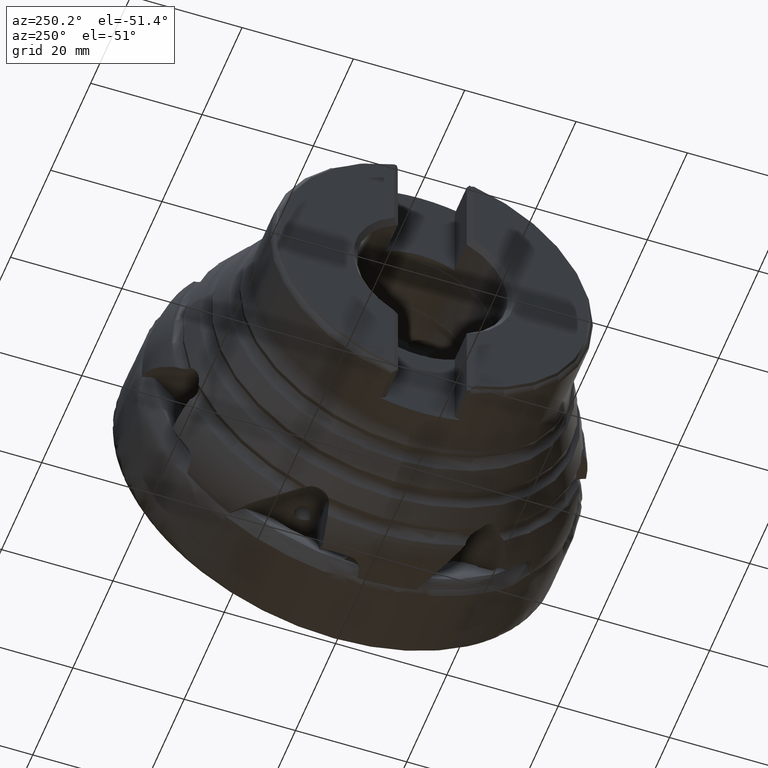
[diagram: clean part render]
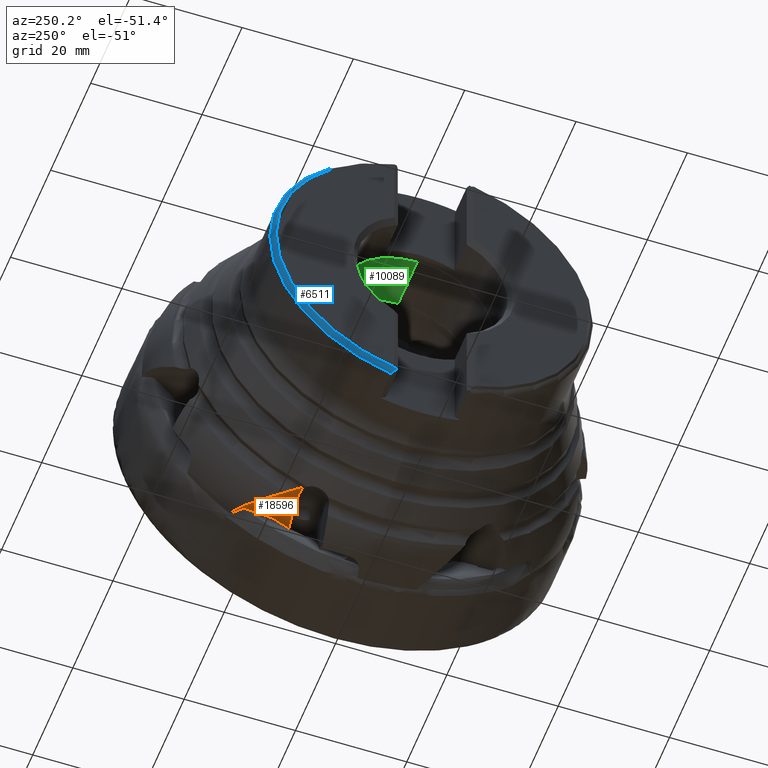
[diagram: same view with three faces highlighted in distinct colors, each labeled with its STEP entity id]
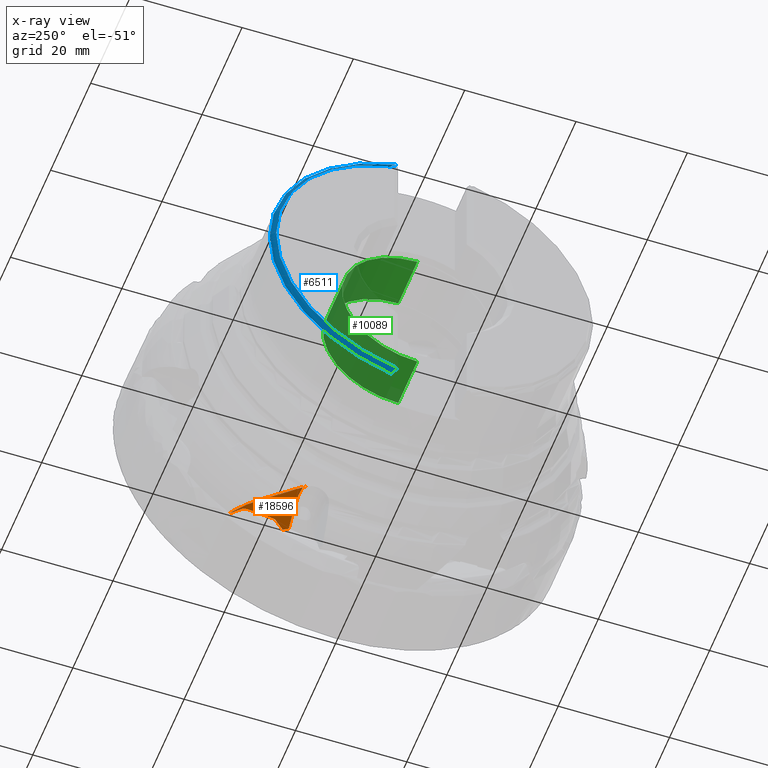
[diagram: x-ray of the same camera — body ghosted, the three highlighted faces saturated]
A machine part, auxiliary view with three faces highlighted in distinct colors.
The next image is the same camera in x-ray (body ghosted, the three faces saturated) — at least one of them is partly hidden behind the body in this view.
Their STEP definitions:

[orange] entity #18596 — the highlighted conical surface has half-angle 25 deg.
#254 = CARTESIAN_POINT ( 'NONE',  ( -23.75697706791013500, 13.81798672375631800, -33.20236709120594300 ) ) ;
#603 = FACE_OUTER_BOUND ( 'NONE', #16149, .T. ) ;
#658 = CARTESIAN_POINT ( 'NONE',  ( -13.50730426062360000, 22.55529430926892300, -31.29764104025030500 ) ) ;
#919 = CARTESIAN_POINT ( 'NONE',  ( -9.463252224743810000, 14.11254857389238300, -25.67094245073273100 ) ) ;
#954 = CARTESIAN_POINT ( 'NONE',  ( -14.00804329131293900, 21.53660307685288400, -30.90397856189066100 ) ) ;
#1488 = CARTESIAN_POINT ( 'NONE',  ( -7.480037492554150600, 11.11459993151474500, -44.00000000000001400 ) ) ;
#1576 = VERTEX_POINT ( 'NONE', #17260 ) ;
#1640 = ORIENTED_EDGE ( 'NONE', *, *, #13310, .T. ) ;
#1704 = DIRECTION ( 'NONE',  ( 0.1484917406717438900, 0.8940604050037934700, -0.4226182617406972200 ) ) ;
#1751 = EDGE_CURVE ( 'NONE', #17425, #1576, #14639, .T. ) ;
#1769 = CARTESIAN_POINT ( 'NONE',  ( -23.72702917279419000, 13.84209461246224400, -33.18768880355523300 ) ) ;
#1841 = CARTESIAN_POINT ( 'NONE',  ( -23.66625336517646600, 13.87977953988623100, -33.14602596675197800 ) ) ;
#2010 = CARTESIAN_POINT ( 'NONE',  ( -21.48514638599130700, 16.65825859365775200, -33.23645156381313400 ) ) ;
#2079 = CARTESIAN_POINT ( 'NONE',  ( -22.19630278449307400, 15.19479962667811500, -32.63726156888986200 ) ) ;
#2152 = AXIS2_PLACEMENT_3D ( 'NONE', #1488, #22580, #7552 ) ;
#2174 = CARTESIAN_POINT ( 'NONE',  ( -22.99999999999995000, 14.35228710107264800, -32.77385773540241600 ) ) ;
#2248 = EDGE_CURVE ( 'NONE', #23207, #10510, #21677, .T. ) ;
#2317 = CARTESIAN_POINT ( 'NONE',  ( -20.71060675804170300, 17.62245996552912400, -33.26454498159726800 ) ) ;
#2486 = ORIENTED_EDGE ( 'NONE', *, *, #1751, .T. ) ;
#2651 = CARTESIAN_POINT ( 'NONE',  ( -12.81791756462504800, 23.41690265047119700, -31.49827761620018100 ) ) ;
#2654 = EDGE_CURVE ( 'NONE', #10510, #7423, #17234, .T. ) ;
#2717 = CARTESIAN_POINT ( 'NONE',  ( -14.00512252077036200, 21.65447841395128100, -30.97848500538010100 ) ) ;
#2989 = CARTESIAN_POINT ( 'NONE',  ( -9.153389588249572400, 13.86064696126040000, -25.53516847632647900 ) ) ;
#3030 = ORIENTED_EDGE ( 'NONE', *, *, #6808, .T. ) ;
#3078 = CARTESIAN_POINT ( 'NONE',  ( -10.22009400952298300, 15.11965316675767400, -26.22788067111993400 ) ) ;
#3471 = CARTESIAN_POINT ( 'NONE',  ( -20.71060675804170300, 17.62245996552912400, -33.26454498159726800 ) ) ;
#3522 = EDGE_CURVE ( 'NONE', #21801, #10143, #8398, .T. ) ;
#3587 = B_SPLINE_CURVE_WITH_KNOTS ( 'NONE', 3,
 ( #6403, #17691, #6307, #2651, #23438, #4558, #11845, #8128, #8280, #17841, #19528, #12026, #17936, #658, #15831, #12175, #21433, #19687, #6480, #19785 ),
 .UNSPECIFIED., .F., .F.,
 ( 4, 2, 2, 2, 2, 2, 2, 2, 2, 4 ),
 ( 0.004865559379412774000, 0.005014309760329991500, 0.005088684950788599300, 0.005163060141247208100, 0.005311810522164429900, 0.005460560903081651700, 0.006055562426750529500, 0.006353063188584968800, 0.006650563950419408100, 0.007245565474088289300 ),
 .UNSPECIFIED. ) ;
#3688 = ORIENTED_EDGE ( 'NONE', *, *, #2248, .T. ) ;
#3776 = CARTESIAN_POINT ( 'NONE',  ( -13.63365845646050000, 20.87241299469826900, -30.29833066339357100 ) ) ;
#3837 = CARTESIAN_POINT ( 'NONE',  ( -20.71060675804170300, 17.62245996552912400, -33.26454498159726800 ) ) ;
#3841 = VERTEX_POINT ( 'NONE', #15166 ) ;
#3897 = CARTESIAN_POINT ( 'NONE',  ( -22.34590130815565700, 15.00948006903706400, -32.63244003423648800 ) ) ;
#4423 = CARTESIAN_POINT ( 'NONE',  ( -13.99014396501193000, 21.42387369316637800, -30.82224872985901200 ) ) ;
#4558 = CARTESIAN_POINT ( 'NONE',  ( -12.84965524976151800, 23.35247538411781000, -31.47326217521158400 ) ) ;
#4587 = ORIENTED_EDGE ( 'NONE', *, *, #13784, .T. ) ;
#4861 = LINE ( 'NONE', #7594, #19444 ) ;
#4970 = CARTESIAN_POINT ( 'NONE',  ( -9.562961771919205500, 14.19819724099245300, -25.71846593551739700 ) ) ;
#5366 = CARTESIAN_POINT ( 'NONE',  ( -12.86780408106254100, 19.74908770233404800, -29.30373327156101100 ) ) ;
#5570 = CARTESIAN_POINT ( 'NONE',  ( -21.39547274631672000, 16.80774089919278300, -33.27705584709097800 ) ) ;
#5738 = CARTESIAN_POINT ( 'NONE',  ( -21.43003627033320400, 16.75826411311260200, -33.26958377227654000 ) ) ;
#5825 = CARTESIAN_POINT ( 'NONE',  ( -13.42999999998231800, 23.31658262420255700, -31.74882447790329500 ) ) ;
#6145 = EDGE_CURVE ( 'NONE', #20119, #24496, #13102, .T. ) ;
#6186 = CARTESIAN_POINT ( 'NONE',  ( -22.99999999999995000, 14.35228710107264800, -32.77385773540241600 ) ) ;
#6280 = CARTESIAN_POINT ( 'NONE',  ( -14.15014878084371300, 23.04542300799588300, -31.96294139637396400 ) ) ;
#6307 = CARTESIAN_POINT ( 'NONE',  ( -12.78874999228169600, 23.48259632960186500, -31.52533848199048800 ) ) ;
#6403 = CARTESIAN_POINT ( 'NONE',  ( -12.73703642166904400, 23.56386365981365900, -31.55123374957431900 ) ) ;
#6480 = CARTESIAN_POINT ( 'NONE',  ( -13.99169692692829200, 21.82712847984057800, -31.08286494078072000 ) ) ;
#6762 = CARTESIAN_POINT ( 'NONE',  ( -7.311189934746824500, 12.13122156470598200, -24.76162903228838300 ) ) ;
#6808 = EDGE_CURVE ( 'NONE', #7423, #17425, #18544, .T. ) ;
#6894 = CARTESIAN_POINT ( 'NONE',  ( -11.62739094339453900, 17.73347545487341000, -27.81185873240652000 ) ) ;
#7175 = CARTESIAN_POINT ( 'NONE',  ( -23.44446523429969500, 14.01082533494576100, -32.98969059895133400 ) ) ;
#7213 = CARTESIAN_POINT ( 'NONE',  ( -21.35698739462250000, 16.85396131560803600, -33.27653043660755100 ) ) ;
#7265 = CARTESIAN_POINT ( 'NONE',  ( -22.99999999999995000, 14.35228710107264800, -32.77385773540241600 ) ) ;
#7423 = VERTEX_POINT ( 'NONE', #18395 ) ;
#7552 = DIRECTION ( 'NONE',  ( 0.9864865090998470300, -0.1638425078055066600, 0.0000000000000000000 ) ) ;
#7587 = CARTESIAN_POINT ( 'NONE',  ( -13.92594489814875800, 21.27140789582722400, -30.69202977994917700 ) ) ;
#7594 = CARTESIAN_POINT ( 'NONE',  ( -7.480037492554148800, 11.11459993151474500, -24.28107663889003800 ) ) ;
#7850 = CARTESIAN_POINT ( 'NONE',  ( -13.50504463302497400, 20.69022823963306100, -30.12769295613228600 ) ) ;
#8004 = EDGE_CURVE ( 'NONE', #1576, #3841, #16848, .T. ) ;
#8019 = CARTESIAN_POINT ( 'NONE',  ( -15.82319226672821900, 22.09316911394340700, -32.43395772877481400 ) ) ;
#8099 = CARTESIAN_POINT ( 'NONE',  ( -13.42999999998231800, 23.31658262420255700, -31.74882447790329500 ) ) ;
#8128 = CARTESIAN_POINT ( 'NONE',  ( -12.90551654417424000, 23.27324088766796400, -31.45070682981129200 ) ) ;
#8242 = EDGE_CURVE ( 'NONE', #3841, #21801, #3587, .T. ) ;
#8280 = CARTESIAN_POINT ( 'NONE',  ( -12.93795454822777700, 23.23583561384899800, -31.44304841093940100 ) ) ;
#8340 = CARTESIAN_POINT ( 'NONE',  ( -18.56034374061523800, 19.91925128102030800, -33.05546755208125400 ) ) ;
#8398 = B_SPLINE_CURVE_WITH_KNOTS ( 'NONE', 3,
 ( #19896, #15786, #954, #4423, #17738, #7587, #10180, #20012, #10926, #3776, #7850, #21326, #5366, #11104, #23699, #12280, #18034, #6894, #8719, #19869, #16196, #12612, #20203, #14516, #3078, #20037, #10357, #4970, #919, #18101, #2989, #8479, #23867, #8806, #12436, #12369 ),
 .UNSPECIFIED., .F., .F.,
 ( 4, 2, 2, 2, 2, 2, 2, 2, 2, 2, 2, 2, 2, 2, 2, 2, 2, 4 ),
 ( 0.007245565474088289300, 0.007451459210061797500, 0.007657352946035304900, 0.007863246682008813100, 0.008069140417982321300, 0.008892715361876380200, 0.01053986524966450700, 0.01136344019355856400, 0.01218701513745262500, 0.01383416502524073900, 0.01465773996913478600, 0.01548131491302883600, 0.01630488985692288600, 0.01712846480081693300, 0.01754025227276396000, 0.01795203974471098300, 0.01877561468860503700, 0.02042276457639314500 ),
 .UNSPECIFIED. ) ;
#8479 = CARTESIAN_POINT ( 'NONE',  ( -8.853618114259475600, 13.59966382052404800, -25.40110764205016400 ) ) ;
#8719 = CARTESIAN_POINT ( 'NONE',  ( -11.38656958417703000, 17.31135614432819400, -27.53409060023130900 ) ) ;
#8806 = CARTESIAN_POINT ( 'NONE',  ( -8.093405834079531400, 12.86566565953202500, -25.05546297559491000 ) ) ;
#9344 = B_SPLINE_CURVE_WITH_KNOTS ( 'NONE', 3,
 ( #254, #1769, #24624, #1841 ),
 .UNSPECIFIED., .F., .F.,
 ( 4, 4 ),
 ( 0.0002686572530961564500, 0.0003919703822120637100 ),
 .UNSPECIFIED. ) ;
#10075 = CARTESIAN_POINT ( 'NONE',  ( -16.77943254111280100, 21.42199845879512000, -32.67824429210219300 ) ) ;
#10143 = VERTEX_POINT ( 'NONE', #6762 ) ;
#10180 = CARTESIAN_POINT ( 'NONE',  ( -13.89200577679785700, 21.22847428899100900, -30.64766971461086700 ) ) ;
#10275 = CARTESIAN_POINT ( 'NONE',  ( -7.480037492554148800, 11.11459993151474500, -24.28107663889003800 ) ) ;
#10357 = CARTESIAN_POINT ( 'NONE',  ( -9.826781441315715100, 14.47750264176209500, -25.87262609347809000 ) ) ;
#10510 = VERTEX_POINT ( 'NONE', #21302 ) ;
#10926 = CARTESIAN_POINT ( 'NONE',  ( -13.79487997543589000, 21.09576861461963300, -30.51597646425511100 ) ) ;
#10937 = CARTESIAN_POINT ( 'NONE',  ( -20.92734534271972500, 17.36739249063721100, -33.26956135351792200 ) ) ;
#11104 = CARTESIAN_POINT ( 'NONE',  ( -12.49127438886327500, 19.15887863563897000, -28.83952151872462400 ) ) ;
#11277 = CARTESIAN_POINT ( 'NONE',  ( -21.92914542179784800, 15.57499821599935400, -32.69453708625153600 ) ) ;
#11457 = CARTESIAN_POINT ( 'NONE',  ( -21.61575830274005800, 16.17384164418339400, -32.91208110503954000 ) ) ;
#11600 = ORIENTED_EDGE ( 'NONE', *, *, #6145, .T. ) ;
#11845 = CARTESIAN_POINT ( 'NONE',  ( -12.86274711282909400, 23.33223759459597300, -31.46692381990481700 ) ) ;
#12026 = CARTESIAN_POINT ( 'NONE',  ( -13.18907578679612800, 22.93235326347960900, -31.37570777810733700 ) ) ;
#12081 = CARTESIAN_POINT ( 'NONE',  ( -14.83406174202813700, 22.69842198419853600, -32.16295218454241200 ) ) ;
#12175 = CARTESIAN_POINT ( 'NONE',  ( -13.69850476067092900, 22.32890618577879500, -31.25191003192229300 ) ) ;
#12280 = CARTESIAN_POINT ( 'NONE',  ( -12.11512071830872600, 18.55817865796093400, -28.38974703018390500 ) ) ;
#12369 = CARTESIAN_POINT ( 'NONE',  ( -7.311189934746824500, 12.13122156470598200, -24.76162903228838300 ) ) ;
#12436 = CARTESIAN_POINT ( 'NONE',  ( -7.720673714818695500, 12.48494583876874500, -24.89305941946776800 ) ) ;
#12585 = DIRECTION ( 'NONE',  ( -0.1638425078055066900, -0.9864865090998471400, 0.0000000000000000000 ) ) ;
#12612 = CARTESIAN_POINT ( 'NONE',  ( -10.67591777370161000, 16.01259999384866400, -26.73641083606824200 ) ) ;
#13102 = CIRCLE ( 'NONE', #2152, 19.71892336110997900 ) ;
#13108 = CARTESIAN_POINT ( 'NONE',  ( -21.51366886119535900, 16.56013891611834100, -33.17286633270701700 ) ) ;
#13310 = EDGE_CURVE ( 'NONE', #17547, #23207, #16368, .T. ) ;
#13429 = ORIENTED_EDGE ( 'NONE', *, *, #8242, .T. ) ;
#13433 = CARTESIAN_POINT ( 'NONE',  ( -22.82786545454568400, 14.50034988199571700, -32.70901826615394700 ) ) ;
#13659 = CONICAL_SURFACE ( 'NONE', #23140, 19.71892336110997600, 0.4363323129985797700 ) ;
#13784 = EDGE_CURVE ( 'NONE', #24496, #17547, #9344, .T. ) ;
#14326 = CARTESIAN_POINT ( 'NONE',  ( -7.480037492554150600, 11.11459993151474500, -44.00000000000001400 ) ) ;
#14516 = CARTESIAN_POINT ( 'NONE',  ( -10.33564150824729600, 15.34283961137950500, -26.35274025468865500 ) ) ;
#14631 = CARTESIAN_POINT ( 'NONE',  ( -23.10960430794019900, 14.25801015862669800, -32.81514337702331800 ) ) ;
#14639 = B_SPLINE_CURVE_WITH_KNOTS ( 'NONE', 3,
 ( #2317, #19081, #17668, #8340, #19662, #17820, #10075, #23486, #8019, #12081, #6280, #8099 ),
 .UNSPECIFIED., .F., .F.,
 ( 4, 2, 2, 2, 2, 4 ),
 ( 3.050990413501854000E-007, 0.002356208442573173200, 0.004712111786104996800, 0.005890063457870908800, 0.007068015129636819900, 0.009423918473168643000 ),
 .UNSPECIFIED. ) ;
#14792 = CARTESIAN_POINT ( 'NONE',  ( -23.55555720309497400, 13.93999408521121100, -33.06131590639105200 ) ) ;
#15012 = CARTESIAN_POINT ( 'NONE',  ( -23.75697706791013500, 13.81798672375631800, -33.20236709120594300 ) ) ;
#15166 = CARTESIAN_POINT ( 'NONE',  ( -12.73703642166904400, 23.56386365981365900, -31.55123374957431900 ) ) ;
#15173 = EDGE_CURVE ( 'NONE', #20119, #10143, #4861, .T. ) ;
#15786 = CARTESIAN_POINT ( 'NONE',  ( -14.00976829992193400, 21.59473475672027800, -30.94236547626056600 ) ) ;
#15831 = CARTESIAN_POINT ( 'NONE',  ( -13.56996926632802000, 22.47926649031521500, -31.28138155075834700 ) ) ;
#16149 = EDGE_LOOP ( 'NONE', ( #22471, #13429, #17401, #23240, #11600, #4587, #1640, #3688, #20415, #3030, #2486 ) ) ;
#16196 = CARTESIAN_POINT ( 'NONE',  ( -10.91051382867966300, 16.45020343139524900, -26.99764066906040900 ) ) ;
#16368 = B_SPLINE_CURVE_WITH_KNOTS ( 'NONE', 3,
 ( #21914, #14792, #7175, #24236, #14631, #7265 ),
 .UNSPECIFIED., .F., .F.,
 ( 4, 2, 4 ),
 ( 2.705208949868603300E-007, 0.0004494539080006473200, 0.0008986372951063078600 ),
 .UNSPECIFIED. ) ;
#16848 = B_SPLINE_CURVE_WITH_KNOTS ( 'NONE', 3,
 ( #5825, #24542, #23041, #17285 ),
 .UNSPECIFIED., .F., .F.,
 ( 4, 4 ),
 ( 2.195725631262309700E-007, 0.0007562303834991008400 ),
 .UNSPECIFIED. ) ;
#17125 = CARTESIAN_POINT ( 'NONE',  ( -21.50625073686516600, 16.60683137848201000, -33.21055178569089600 ) ) ;
#17195 = CARTESIAN_POINT ( 'NONE',  ( -21.51366886119535900, 16.56013891611834100, -33.17286633270701700 ) ) ;
#17234 = B_SPLINE_CURVE_WITH_KNOTS ( 'NONE', 3,
 ( #13108, #17125, #2010, #5738, #5570, #19032 ),
 .UNSPECIFIED., .F., .F.,
 ( 4, 2, 4 ),
 ( 1.631719470035941600E-006, 0.0001800647426003101200, 0.0003584977657305842900 ),
 .UNSPECIFIED. ) ;
#17260 = CARTESIAN_POINT ( 'NONE',  ( -13.42999999998231800, 23.31658262420255700, -31.74882447790329500 ) ) ;
#17281 = CARTESIAN_POINT ( 'NONE',  ( -21.80783727372234500, 15.77536507895485200, -32.74789027672952100 ) ) ;
#17285 = CARTESIAN_POINT ( 'NONE',  ( -12.73703642166904400, 23.56386365981365900, -31.55123374957431900 ) ) ;
#17401 = ORIENTED_EDGE ( 'NONE', *, *, #3522, .T. ) ;
#17425 = VERTEX_POINT ( 'NONE', #3837 ) ;
#17547 = VERTEX_POINT ( 'NONE', #21468 ) ;
#17668 = CARTESIAN_POINT ( 'NONE',  ( -19.66445720211093800, 18.81030527228495700, -33.20688756157030500 ) ) ;
#17691 = CARTESIAN_POINT ( 'NONE',  ( -12.76423996532161300, 23.52389628917860500, -31.53934837445051500 ) ) ;
#17738 = CARTESIAN_POINT ( 'NONE',  ( -13.97395835576842100, 21.36929944741149300, -30.77892128060050700 ) ) ;
#17820 = CARTESIAN_POINT ( 'NONE',  ( -17.08678582245597300, 21.18464402550529600, -32.75115169628701000 ) ) ;
#17841 = CARTESIAN_POINT ( 'NONE',  ( -13.00056520085257200, 23.15989194303470100, -31.42598878737267800 ) ) ;
#17936 = CARTESIAN_POINT ( 'NONE',  ( -13.31592180840180500, 22.78130886678145100, -31.34375925885980200 ) ) ;
#18034 = CARTESIAN_POINT ( 'NONE',  ( -11.99283738022143300, 18.35353563653906100, -28.24341458207302900 ) ) ;
#18101 = CARTESIAN_POINT ( 'NONE',  ( -9.257369435123157700, 13.94449714625550900, -25.57959911956777400 ) ) ;
#18395 = CARTESIAN_POINT ( 'NONE',  ( -21.35698739462250000, 16.85396131560803600, -33.27653043660755100 ) ) ;
#18544 = B_SPLINE_CURVE_WITH_KNOTS ( 'NONE', 3,
 ( #7213, #20452, #10937, #3471 ),
 .UNSPECIFIED., .F., .F.,
 ( 4, 4 ),
 ( 3.125687328263996500E-007, 0.001004574363987892200 ),
 .UNSPECIFIED. ) ;
#18596 = ADVANCED_FACE ( 'NONE', ( #603 ), #13659, .F. ) ;
#19032 = CARTESIAN_POINT ( 'NONE',  ( -21.35698739462250000, 16.85396131560803600, -33.27653043660755100 ) ) ;
#19081 = CARTESIAN_POINT ( 'NONE',  ( -20.19582019766368900, 18.22828337375594600, -33.25263034789032400 ) ) ;
#19444 = VECTOR ( 'NONE', #1704, 999.9999999999998900 ) ;
#19528 = CARTESIAN_POINT ( 'NONE',  ( -13.03189106556499000, 23.12191706807506400, -31.41750119234230400 ) ) ;
#19662 = CARTESIAN_POINT ( 'NONE',  ( -17.98769911088701400, 20.44628882022592000, -32.94978797381713100 ) ) ;
#19687 = CARTESIAN_POINT ( 'NONE',  ( -13.92302051625134100, 22.01039629141109400, -31.16511289895396100 ) ) ;
#19785 = CARTESIAN_POINT ( 'NONE',  ( -14.00512252077036200, 21.65447841395128100, -30.97848500538010100 ) ) ;
#19869 = CARTESIAN_POINT ( 'NONE',  ( -11.03004040353678600, 16.66638879478675900, -27.13006013515841300 ) ) ;
#19896 = CARTESIAN_POINT ( 'NONE',  ( -14.00512252077036200, 21.65447841395128100, -30.97848500538010100 ) ) ;
#20012 = CARTESIAN_POINT ( 'NONE',  ( -13.82687424964195700, 21.14042104270742300, -30.55971427737773600 ) ) ;
#20037 = CARTESIAN_POINT ( 'NONE',  ( -9.965693562530498500, 14.68693019258455100, -25.98788064161410500 ) ) ;
#20119 = VERTEX_POINT ( 'NONE', #10275 ) ;
#20203 = CARTESIAN_POINT ( 'NONE',  ( -10.56311775629838400, 15.78965289630832000, -26.60710390563098900 ) ) ;
#20355 = DIRECTION ( 'NONE',  ( 0.9864865090998470300, -0.1638425078055066900, 0.0000000000000000000 ) ) ;
#20415 = ORIENTED_EDGE ( 'NONE', *, *, #2654, .T. ) ;
#20452 = CARTESIAN_POINT ( 'NONE',  ( -21.14279534038283600, 17.11120324025427300, -33.27360623960525000 ) ) ;
#21122 = CARTESIAN_POINT ( 'NONE',  ( -22.66255782225615800, 14.66157778502741500, -32.66871578408935100 ) ) ;
#21302 = CARTESIAN_POINT ( 'NONE',  ( -21.51366886119535900, 16.56013891611834100, -33.17286633270701700 ) ) ;
#21326 = CARTESIAN_POINT ( 'NONE',  ( -13.12094174506425400, 20.13349124776117800, -29.62538649569258800 ) ) ;
#21433 = CARTESIAN_POINT ( 'NONE',  ( -13.76970802703785100, 22.25743489049692100, -31.24343685537187600 ) ) ;
#21468 = CARTESIAN_POINT ( 'NONE',  ( -23.66625336517646600, 13.87977953988623100, -33.14602596675197800 ) ) ;
#21677 = B_SPLINE_CURVE_WITH_KNOTS ( 'NONE', 3,
 ( #2174, #13433, #21122, #3897, #2079, #11277, #17281, #11457, #24683, #17195 ),
 .UNSPECIFIED., .F., .F.,
 ( 4, 2, 2, 2, 4 ),
 ( 0.0008986372951063078600, 0.001604083820139344300, 0.002309530345172380900, 0.003014976870205417200, 0.003720423395238453600 ),
 .UNSPECIFIED. ) ;
#21801 = VERTEX_POINT ( 'NONE', #2717 ) ;
#21914 = CARTESIAN_POINT ( 'NONE',  ( -23.66625336517646600, 13.87977953988623100, -33.14602596675197800 ) ) ;
#22471 = ORIENTED_EDGE ( 'NONE', *, *, #8004, .T. ) ;
#22580 = DIRECTION ( 'NONE',  ( -0.1638425078055066900, -0.9864865090998471400, 0.0000000000000000000 ) ) ;
#23041 = CARTESIAN_POINT ( 'NONE',  ( -12.96949160840654100, 23.48546638392974000, -31.61464696674879000 ) ) ;
#23140 = AXIS2_PLACEMENT_3D ( 'NONE', #14326, #12585, #20355 ) ;
#23207 = VERTEX_POINT ( 'NONE', #6186 ) ;
#23240 = ORIENTED_EDGE ( 'NONE', *, *, #15173, .F. ) ;
#23438 = CARTESIAN_POINT ( 'NONE',  ( -12.82708409083222100, 23.39473080008811200, -31.48881480663131400 ) ) ;
#23486 = CARTESIAN_POINT ( 'NONE',  ( -16.14778757402032400, 21.87624128351311700, -32.51970484019540200 ) ) ;
#23699 = CARTESIAN_POINT ( 'NONE',  ( -12.36536103496040300, 18.96026678879152900, -28.68776124584711300 ) ) ;
#23867 = CARTESIAN_POINT ( 'NONE',  ( -8.662805670310644900, 13.41789724763307700, -25.31260771170705900 ) ) ;
#24236 = CARTESIAN_POINT ( 'NONE',  ( -23.22196472796199300, 14.16936714268293200, -32.86671028429742600 ) ) ;
#24496 = VERTEX_POINT ( 'NONE', #15012 ) ;
#24542 = CARTESIAN_POINT ( 'NONE',  ( -13.20045940755528100, 23.40301217959557800, -31.68057674129600400 ) ) ;
#24624 = CARTESIAN_POINT ( 'NONE',  ( -23.69683243590191100, 13.86314567647515400, -33.16942655154395700 ) ) ;
#24683 = CARTESIAN_POINT ( 'NONE',  ( -21.54299181099580800, 16.37556925015934400, -33.02390028730885500 ) ) ;

[blue] entity #6511 — the highlighted toroidal blend (fillet) surface has major radius 28 mm and minor (blend) radius 1 mm.
#310 = DIRECTION ( 'NONE',  ( 0.0000000000000000000, 0.0000000000000000000, -1.000000000000000000 ) ) ;
#778 = CARTESIAN_POINT ( 'NONE',  ( -47.95013661940179600, 7.157023391835953600, 28.10297166081752400 ) ) ;
#1777 = DIRECTION ( 'NONE',  ( 1.000000000000000000, -0.0000000000000000000, -0.0000000000000000000 ) ) ;
#2558 = VERTEX_POINT ( 'NONE', #14952 ) ;
#2670 = CARTESIAN_POINT ( 'NONE',  ( -48.53654045399326800, 6.719805759502166100, 27.82276470692357900 ) ) ;
#3369 = CARTESIAN_POINT ( 'NONE',  ( -48.61943720639941100, 6.569437206399411100, 27.72639550515681300 ) ) ;
#3569 = CARTESIAN_POINT ( 'NONE',  ( -48.13912765849119100, 7.085498574113787900, -28.05713235832927000 ) ) ;
#3596 = CARTESIAN_POINT ( 'NONE',  ( -47.75000000000000000, 0.0000000000000000000, 0.0000000000000000000 ) ) ;
#3737 = CARTESIAN_POINT ( 'NONE',  ( -47.75000000000000000, 0.0000000000000000000, 0.0000000000000000000 ) ) ;
#3814 = CARTESIAN_POINT ( 'NONE',  ( -48.54447833991081800, 6.723873350509413700, -27.82537157179255500 ) ) ;
#4879 = VERTEX_POINT ( 'NONE', #13135 ) ;
#6112 = EDGE_LOOP ( 'NONE', ( #23068, #19038, #22876, #19692, #23860, #12477 ) ) ;
#6302 = FACE_OUTER_BOUND ( 'NONE', #6112, .T. ) ;
#6482 = EDGE_CURVE ( 'NONE', #2558, #21859, #20088, .T. ) ;
#6502 = CARTESIAN_POINT ( 'NONE',  ( -47.75000000000000000, 7.157023391835953600, 28.10297166081752700 ) ) ;
#6511 = ADVANCED_FACE ( 'NONE', ( #6302 ), #20292, .T. ) ;
#6930 = B_SPLINE_CURVE_WITH_KNOTS ( 'NONE', 3,
 ( #21455, #12049, #2670, #10117, #14196, #14028, #778, #6502 ),
 .UNSPECIFIED., .F., .F.,
 ( 4, 2, 2, 4 ),
 ( 0.0000000000000000000, 0.0002926663125462860200, 0.0005853326250925720400, 0.001170665250185141700 ),
 .UNSPECIFIED. ) ;
#6938 = CARTESIAN_POINT ( 'NONE',  ( -48.72876197310684900, 0.0000000000000000000, 0.0000000000000000000 ) ) ;
#7101 = DIRECTION ( 'NONE',  ( 1.000000000000000000, -0.0000000000000000000, -0.0000000000000000000 ) ) ;
#7263 = AXIS2_PLACEMENT_3D ( 'NONE', #6938, #7101, #16637 ) ;
#7354 = DIRECTION ( 'NONE',  ( 0.0000000000000000000, 0.0000000000000000000, -1.000000000000000000 ) ) ;
#7559 = VERTEX_POINT ( 'NONE', #20741 ) ;
#7569 = DIRECTION ( 'NONE',  ( 1.000000000000000000, -0.0000000000000000000, -0.0000000000000000000 ) ) ;
#8075 = AXIS2_PLACEMENT_3D ( 'NONE', #3737, #7569, #310 ) ;
#8752 = B_SPLINE_CURVE_WITH_KNOTS ( 'NONE', 3,
 ( #22609, #13103, #3569, #18879, #3814, #19127 ),
 .UNSPECIFIED., .F., .F.,
 ( 4, 2, 4 ),
 ( 0.0000000000000000000, 0.0005879244040444032700, 0.001175848808088806500 ),
 .UNSPECIFIED. ) ;
#9467 = CIRCLE ( 'NONE', #8075, 28.99999999999999600 ) ;
#9698 = CARTESIAN_POINT ( 'NONE',  ( -48.61943720639936800, 6.569437206399368500, -27.72639550515690800 ) ) ;
#10117 = CARTESIAN_POINT ( 'NONE',  ( -48.42753808980365400, 6.856102918376378400, 27.91011573965453600 ) ) ;
#12049 = CARTESIAN_POINT ( 'NONE',  ( -48.58191717135123600, 6.646738929479651500, 27.77593714930196000 ) ) ;
#12142 = CARTESIAN_POINT ( 'NONE',  ( -48.70618589885155800, 6.656185898851560100, -27.51929544914615600 ) ) ;
#12477 = ORIENTED_EDGE ( 'NONE', *, *, #15369, .T. ) ;
#12493 = EDGE_CURVE ( 'NONE', #4879, #21859, #15322, .T. ) ;
#13096 = EDGE_CURVE ( 'NONE', #4879, #20018, #16822, .T. ) ;
#13103 = CARTESIAN_POINT ( 'NONE',  ( -47.94932403779292700, 7.157023391835950900, -28.10297166081752000 ) ) ;
#13135 = CARTESIAN_POINT ( 'NONE',  ( -48.72876197310684900, 6.678761973106846400, -27.40284955085112300 ) ) ;
#13219 = CARTESIAN_POINT ( 'NONE',  ( -48.72876197310684900, 6.678761973106846400, 27.40284955085112300 ) ) ;
#14028 = CARTESIAN_POINT ( 'NONE',  ( -48.14012003175675900, 7.085056524085539200, 28.05684905435723700 ) ) ;
#14196 = CARTESIAN_POINT ( 'NONE',  ( -48.36276291495468600, 6.920296441551270700, 27.95125651316942200 ) ) ;
#14952 = CARTESIAN_POINT ( 'NONE',  ( -48.61943720639941100, 6.569437206399411100, 27.72639550515681300 ) ) ;
#14975 = CARTESIAN_POINT ( 'NONE',  ( -48.70635681678191300, 6.656356816781914700, 27.51841386576239800 ) ) ;
#15322 = CIRCLE ( 'NONE', #7263, 28.20499999999999100 ) ;
#15369 = EDGE_CURVE ( 'NONE', #2558, #7559, #6930, .T. ) ;
#15886 = CARTESIAN_POINT ( 'NONE',  ( -48.61943720639936800, 6.569437206399368500, -27.72639550515690800 ) ) ;
#16637 = DIRECTION ( 'NONE',  ( 0.0000000000000000000, 0.0000000000000000000, -1.000000000000000000 ) ) ;
#16822 = B_SPLINE_CURVE_WITH_KNOTS ( 'NONE', 3,
 ( #17739, #12142, #19743, #15886 ),
 .UNSPECIFIED., .F., .F.,
 ( 4, 4 ),
 ( 0.001377375308583963800, 0.001735795561233082200 ),
 .UNSPECIFIED. ) ;
#17609 = VERTEX_POINT ( 'NONE', #18354 ) ;
#17739 = CARTESIAN_POINT ( 'NONE',  ( -48.72876197310684900, 6.678761973106846400, -27.40284955085112300 ) ) ;
#18354 = CARTESIAN_POINT ( 'NONE',  ( -47.75000000000000000, 7.157023391835950900, -28.10297166081752400 ) ) ;
#18576 = CARTESIAN_POINT ( 'NONE',  ( -48.66751388391384100, 6.617513883913832600, 27.62805459430377700 ) ) ;
#18879 = CARTESIAN_POINT ( 'NONE',  ( -48.43595395357234400, 6.866423989762293600, -27.91673037675994000 ) ) ;
#19038 = ORIENTED_EDGE ( 'NONE', *, *, #22673, .T. ) ;
#19127 = CARTESIAN_POINT ( 'NONE',  ( -48.61943720639936800, 6.569437206399368500, -27.72639550515690800 ) ) ;
#19692 = ORIENTED_EDGE ( 'NONE', *, *, #12493, .T. ) ;
#19743 = CARTESIAN_POINT ( 'NONE',  ( -48.66788107298404500, 6.617881072984044300, -27.62730350854895900 ) ) ;
#20018 = VERTEX_POINT ( 'NONE', #9698 ) ;
#20088 = B_SPLINE_CURVE_WITH_KNOTS ( 'NONE', 3,
 ( #3369, #18576, #14975, #13219 ),
 .UNSPECIFIED., .F., .F.,
 ( 4, 4 ),
 ( 0.0007420664063345314400, 0.001100219257464493500 ),
 .UNSPECIFIED. ) ;
#20292 = TOROIDAL_SURFACE ( 'NONE', #23817, 27.99999999999999300, 1.000000000000004000 ) ;
#20741 = CARTESIAN_POINT ( 'NONE',  ( -47.75000000000000000, 7.157023391835953600, 28.10297166081752700 ) ) ;
#20909 = EDGE_CURVE ( 'NONE', #17609, #7559, #9467, .T. ) ;
#21455 = CARTESIAN_POINT ( 'NONE',  ( -48.61943720639941100, 6.569437206399411100, 27.72639550515681300 ) ) ;
#21859 = VERTEX_POINT ( 'NONE', #21930 ) ;
#21930 = CARTESIAN_POINT ( 'NONE',  ( -48.72876197310684900, 6.678761973106846400, 27.40284955085112300 ) ) ;
#22609 = CARTESIAN_POINT ( 'NONE',  ( -47.75000000000000000, 7.157023391835950900, -28.10297166081752400 ) ) ;
#22673 = EDGE_CURVE ( 'NONE', #17609, #20018, #8752, .T. ) ;
#22876 = ORIENTED_EDGE ( 'NONE', *, *, #13096, .F. ) ;
#23068 = ORIENTED_EDGE ( 'NONE', *, *, #20909, .F. ) ;
#23817 = AXIS2_PLACEMENT_3D ( 'NONE', #3596, #1777, #7354 ) ;
#23860 = ORIENTED_EDGE ( 'NONE', *, *, #6482, .F. ) ;

[green] entity #10089 — the highlighted cylindrical surface (partial cylindrical patch) has radius 13.5 mm, axis along (-1, -0, -0).
#498 = VECTOR ( 'NONE', #9447, 1000.000000000000000 ) ;
#548 = CYLINDRICAL_SURFACE ( 'NONE', #15638, 13.50000000000000000 ) ;
#874 = DIRECTION ( 'NONE',  ( -1.000000000000000000, -0.0000000000000000000, -0.0000000000000000000 ) ) ;
#2821 = VERTEX_POINT ( 'NONE', #13655 ) ;
#4204 = ORIENTED_EDGE ( 'NONE', *, *, #22479, .F. ) ;
#4220 = CIRCLE ( 'NONE', #8388, 13.50000000000000000 ) ;
#5405 = CARTESIAN_POINT ( 'NONE',  ( -31.25000000000000000, 1.653273178848926900E-015, -13.50000000000000000 ) ) ;
#6510 = DIRECTION ( 'NONE',  ( 0.0000000000000000000, 0.0000000000000000000, 1.000000000000000000 ) ) ;
#6604 = CARTESIAN_POINT ( 'NONE',  ( -31.25000000000000000, 0.0000000000000000000, 13.50000000000000000 ) ) ;
#6927 = EDGE_CURVE ( 'NONE', #2821, #10916, #4220, .T. ) ;
#7859 = VERTEX_POINT ( 'NONE', #16630 ) ;
#8071 = DIRECTION ( 'NONE',  ( -1.000000000000000000, -0.0000000000000000000, -0.0000000000000000000 ) ) ;
#8388 = AXIS2_PLACEMENT_3D ( 'NONE', #18845, #9177, #18923 ) ;
#9177 = DIRECTION ( 'NONE',  ( -1.000000000000000000, 0.0000000000000000000, 0.0000000000000000000 ) ) ;
#9447 = DIRECTION ( 'NONE',  ( -1.000000000000000000, -0.0000000000000000000, -0.0000000000000000000 ) ) ;
#10089 = ADVANCED_FACE ( 'NONE', ( #16307 ), #548, .F. ) ;
#10224 = CARTESIAN_POINT ( 'NONE',  ( -31.25000000000000000, 0.0000000000000000000, 0.0000000000000000000 ) ) ;
#10900 = DIRECTION ( 'NONE',  ( 0.0000000000000000000, 0.0000000000000000000, 1.000000000000000000 ) ) ;
#10916 = VERTEX_POINT ( 'NONE', #5405 ) ;
#12943 = CARTESIAN_POINT ( 'NONE',  ( -40.80000000000001800, 0.0000000000000000000, 13.50000000000000000 ) ) ;
#13022 = DIRECTION ( 'NONE',  ( 1.000000000000000000, -0.0000000000000000000, -0.0000000000000000000 ) ) ;
#13237 = EDGE_LOOP ( 'NONE', ( #17058, #21835, #18243, #4204 ) ) ;
#13249 = EDGE_CURVE ( 'NONE', #2821, #19671, #23084, .T. ) ;
#13655 = CARTESIAN_POINT ( 'NONE',  ( -31.25000000000000000, 0.0000000000000000000, 13.50000000000000000 ) ) ;
#14288 = CARTESIAN_POINT ( 'NONE',  ( -40.80000000000001800, 0.0000000000000000000, 0.0000000000000000000 ) ) ;
#14480 = AXIS2_PLACEMENT_3D ( 'NONE', #14288, #13022, #10900 ) ;
#15043 = CARTESIAN_POINT ( 'NONE',  ( -31.25000000000000000, 1.653273178848926900E-015, -13.50000000000000000 ) ) ;
#15638 = AXIS2_PLACEMENT_3D ( 'NONE', #10224, #8071, #6510 ) ;
#16307 = FACE_OUTER_BOUND ( 'NONE', #13237, .T. ) ;
#16630 = CARTESIAN_POINT ( 'NONE',  ( -40.80000000000001800, 1.657865604345728900E-015, -13.50000000000000000 ) ) ;
#17058 = ORIENTED_EDGE ( 'NONE', *, *, #23642, .F. ) ;
#18243 = ORIENTED_EDGE ( 'NONE', *, *, #13249, .T. ) ;
#18845 = CARTESIAN_POINT ( 'NONE',  ( -31.25000000000000000, 0.0000000000000000000, 0.0000000000000000000 ) ) ;
#18923 = DIRECTION ( 'NONE',  ( 0.0000000000000000000, 0.0000000000000000000, 1.000000000000000000 ) ) ;
#19671 = VERTEX_POINT ( 'NONE', #12943 ) ;
#19851 = LINE ( 'NONE', #15043, #498 ) ;
#20191 = CIRCLE ( 'NONE', #14480, 13.50000000000000000 ) ;
#20703 = VECTOR ( 'NONE', #874, 1000.000000000000000 ) ;
#21835 = ORIENTED_EDGE ( 'NONE', *, *, #6927, .F. ) ;
#22479 = EDGE_CURVE ( 'NONE', #7859, #19671, #20191, .T. ) ;
#23084 = LINE ( 'NONE', #6604, #20703 ) ;
#23642 = EDGE_CURVE ( 'NONE', #10916, #7859, #19851, .T. ) ;